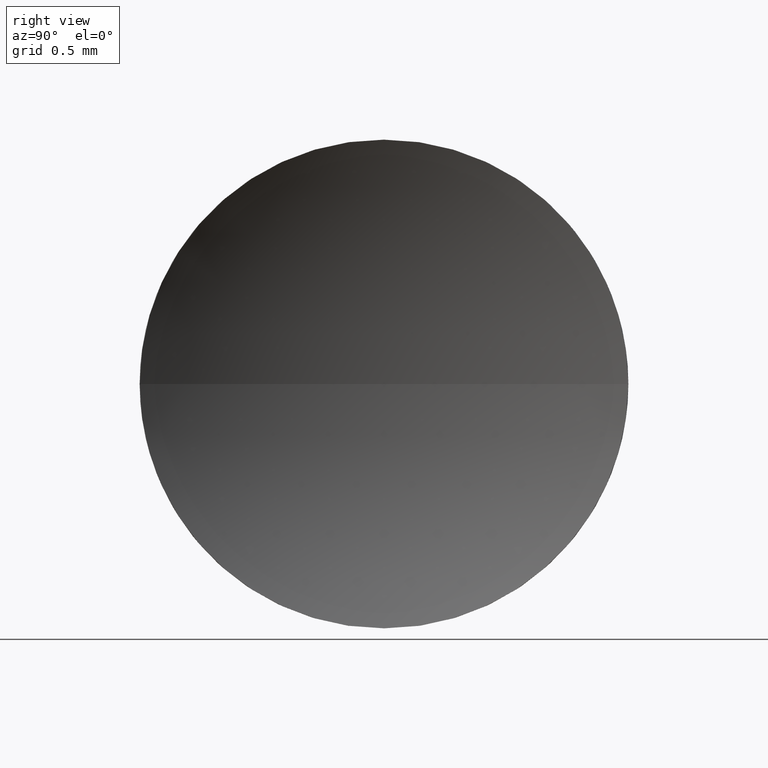
[diagram: clean part render]
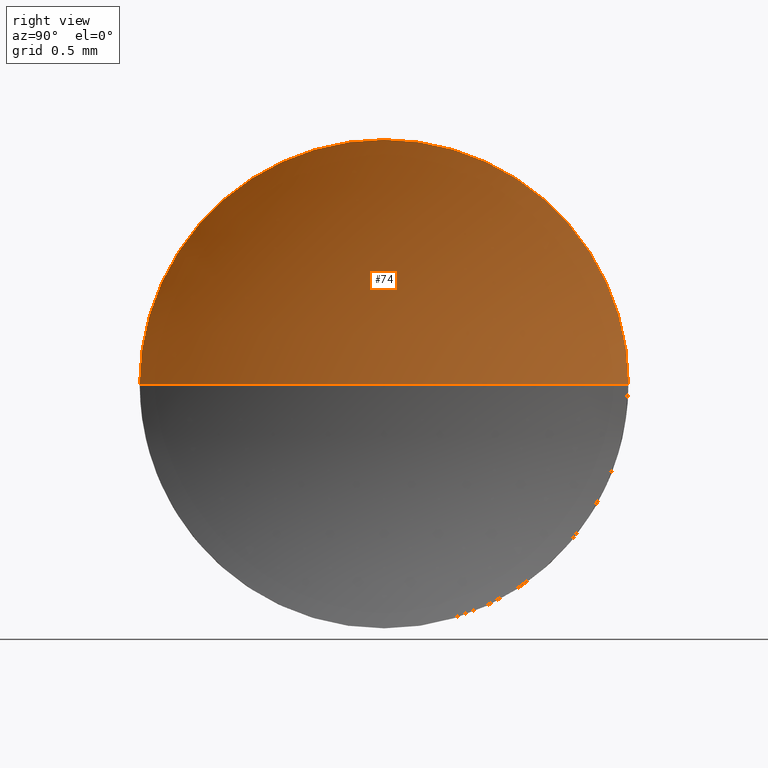
[diagram: same view with one face highlighted and labeled with its STEP entity id]
A machine part, right view. The second image highlights one B-rep face of the part: STEP entity #74.
In plain terms, the highlighted spherical surface has radius 4.58 mm.
Its self-contained STEP definition (entity closure, byte-faithful):
#2 = VERTEX_POINT ( 'NONE', #150 ) ;
#10 = AXIS2_PLACEMENT_3D ( 'NONE', #30, #183, #20 ) ;
#14 = ORIENTED_EDGE ( 'NONE', *, *, #80, .F. ) ;
#17 = AXIS2_PLACEMENT_3D ( 'NONE', #29, #66, #115 ) ;
#20 = DIRECTION ( 'NONE',  ( 0.0000000000000000000, 0.0000000000000000000, 1.000000000000000000 ) ) ;
#21 = SPHERICAL_SURFACE ( 'NONE', #17, 4.580000000000001000 ) ;
#27 = ORIENTED_EDGE ( 'NONE', *, *, #145, .F. ) ;
#29 = CARTESIAN_POINT ( 'NONE',  ( 17.16059508478295800, 6.515563045701518300, 0.0000000000000000000 ) ) ;
#30 = CARTESIAN_POINT ( 'NONE',  ( 13.04035237348548100, 6.515563045701520100, 0.0000000000000000000 ) ) ;
#34 = AXIS2_PLACEMENT_3D ( 'NONE', #107, #157, #96 ) ;
#49 = EDGE_CURVE ( 'NONE', #170, #58, #120, .T. ) ;
#50 = CIRCLE ( 'NONE', #10, 2.000000000000000900 ) ;
#58 = VERTEX_POINT ( 'NONE', #109 ) ;
#66 = DIRECTION ( 'NONE',  ( 0.0000000000000000000, 0.0000000000000000000, -1.000000000000000000 ) ) ;
#74 = ADVANCED_FACE ( 'NONE', ( #162 ), #21, .F. ) ;
#78 = DIRECTION ( 'NONE',  ( 0.0000000000000000000, 0.0000000000000000000, 1.000000000000000000 ) ) ;
#80 = EDGE_CURVE ( 'NONE', #137, #170, #50, .T. ) ;
#84 = DIRECTION ( 'NONE',  ( 0.0000000000000000000, 1.000000000000000000, 1.224646799147353500E-016 ) ) ;
#92 = CIRCLE ( 'NONE', #34, 4.580000000000001000 ) ;
#96 = DIRECTION ( 'NONE',  ( 1.000000000000000000, 0.0000000000000000000, 0.0000000000000000000 ) ) ;
#102 = ORIENTED_EDGE ( 'NONE', *, *, #131, .T. ) ;
#107 = CARTESIAN_POINT ( 'NONE',  ( 17.16059508478295800, 6.515563045701518300, 0.0000000000000000000 ) ) ;
#109 = CARTESIAN_POINT ( 'NONE',  ( 13.04035237348548100, 8.515563045701522800, 0.0000000000000000000 ) ) ;
#111 = ORIENTED_EDGE ( 'NONE', *, *, #49, .F. ) ;
#112 = EDGE_LOOP ( 'NONE', ( #14, #102, #27, #111 ) ) ;
#115 = DIRECTION ( 'NONE',  ( 0.0000000000000000000, 1.000000000000000000, 0.0000000000000000000 ) ) ;
#119 = AXIS2_PLACEMENT_3D ( 'NONE', #178, #152, #84 ) ;
#120 = CIRCLE ( 'NONE', #151, 2.000000000000000900 ) ;
#131 = EDGE_CURVE ( 'NONE', #137, #2, #155, .T. ) ;
#137 = VERTEX_POINT ( 'NONE', #179 ) ;
#145 = EDGE_CURVE ( 'NONE', #58, #2, #92, .T. ) ;
#150 = CARTESIAN_POINT ( 'NONE',  ( 12.58059508478295800, 6.515563045701518300, 0.0000000000000000000 ) ) ;
#151 = AXIS2_PLACEMENT_3D ( 'NONE', #176, #164, #78 ) ;
#152 = DIRECTION ( 'NONE',  ( 0.0000000000000000000, 1.224646799147353200E-016, -1.000000000000000000 ) ) ;
#155 = CIRCLE ( 'NONE', #119, 4.580000000000000100 ) ;
#157 = DIRECTION ( 'NONE',  ( 0.0000000000000000000, 0.0000000000000000000, 1.000000000000000000 ) ) ;
#162 = FACE_OUTER_BOUND ( 'NONE', #112, .T. ) ;
#164 = DIRECTION ( 'NONE',  ( -1.000000000000000000, -0.0000000000000000000, -0.0000000000000000000 ) ) ;
#167 = CARTESIAN_POINT ( 'NONE',  ( 13.04035237348548100, 6.515563045701520100, 2.000000000000000900 ) ) ;
#170 = VERTEX_POINT ( 'NONE', #167 ) ;
#176 = CARTESIAN_POINT ( 'NONE',  ( 13.04035237348548100, 6.515563045701520100, 0.0000000000000000000 ) ) ;
#178 = CARTESIAN_POINT ( 'NONE',  ( 17.16059508478295800, 6.515563045701518300, 0.0000000000000000000 ) ) ;
#179 = CARTESIAN_POINT ( 'NONE',  ( 13.04035237348548100, 4.515563045701515700, -2.449293598294708900E-016 ) ) ;
#183 = DIRECTION ( 'NONE',  ( -1.000000000000000000, -0.0000000000000000000, -0.0000000000000000000 ) ) ;